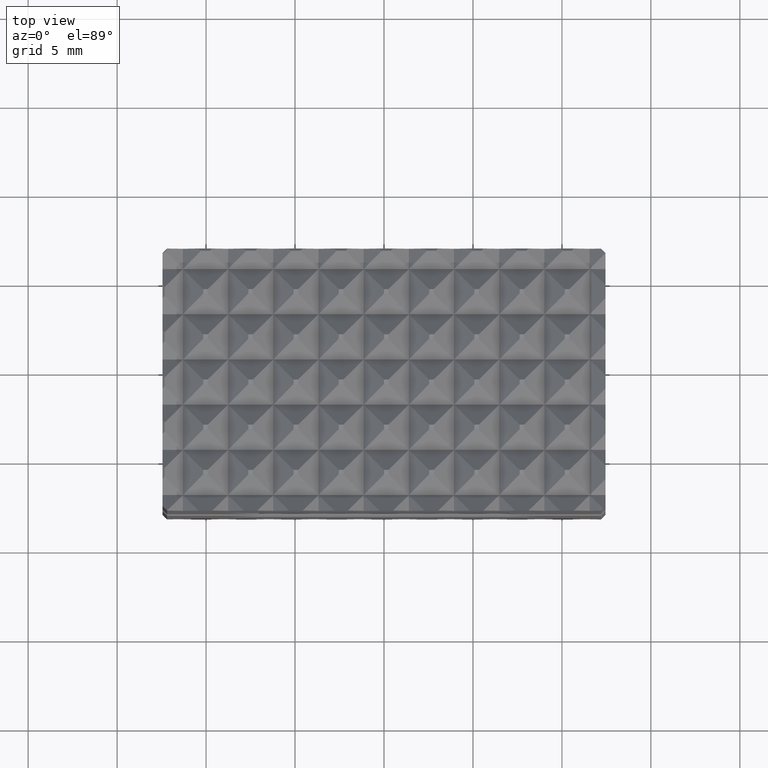
[diagram: clean part render]
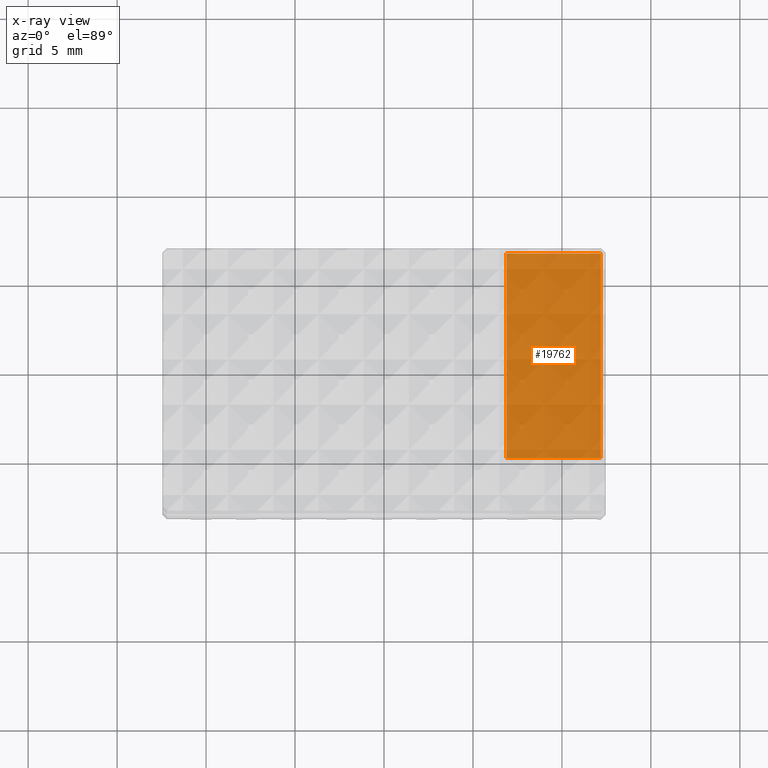
[diagram: x-ray — body ghosted, one internal face saturated and labeled with its STEP entity id]
A machine part, top view, then the same camera in x-ray: the body is ghosted and one INTERNAL B-rep face — a face not visible from any outside direction — is saturated and labeled: STEP entity #19762.
In plain terms, the highlighted planar face has unit normal (0, 0.342, -0.9397).
Its self-contained STEP definition (entity closure, byte-faithful):
#765 = LINE ( 'NONE', #7314, #9479 ) ;
#812 = CARTESIAN_POINT ( 'NONE',  ( 0.4800000000000000933, 0.4499999999999997891, 0.3124912006203184878 ) ) ;
#1612 = EDGE_CURVE ( 'NONE', #10842, #15081, #4268, .T. ) ;
#2078 = VERTEX_POINT ( 'NONE', #812 ) ;
#2567 = DIRECTION ( 'NONE',  ( -1.000000000000000000, 0.0000000000000000000, 0.0000000000000000000 ) ) ;
#3471 = VECTOR ( 'NONE', #8144, 39.37007874015748143 ) ;
#4231 = CARTESIAN_POINT ( 'NONE',  ( 0.4899999999999999911, -0.1882418283656833446, 0.08019017283157517384 ) ) ;
#4268 = LINE ( 'NONE', #5987, #16085 ) ;
#4533 = DIRECTION ( 'NONE',  ( -0.0000000000000000000, 0.9396926207859100932, 0.3420201433256638279 ) ) ;
#5403 = VERTEX_POINT ( 'NONE', #17277 ) ;
#5703 = PLANE ( 'NONE',  #13408 ) ;
#5865 = ORIENTED_EDGE ( 'NONE', *, *, #1612, .F. ) ;
#5987 = CARTESIAN_POINT ( 'NONE',  ( 0.2708974596215555919, -0.1882418283656833446, 0.08019017283157517384 ) ) ;
#6553 = EDGE_CURVE ( 'NONE', #15081, #2078, #15817, .T. ) ;
#7314 = CARTESIAN_POINT ( 'NONE',  ( 0.4899999999999999911, -1.365923996832131609E-16, 0.1487045952005300875 ) ) ;
#7712 = EDGE_CURVE ( 'NONE', #5403, #10842, #765, .T. ) ;
#7725 = DIRECTION ( 'NONE',  ( 0.0000000000000000000, 0.9396926207859100932, 0.3420201433256638279 ) ) ;
#8144 = DIRECTION ( 'NONE',  ( 1.000000000000000000, 0.0000000000000000000, 0.0000000000000000000 ) ) ;
#8655 = EDGE_LOOP ( 'NONE', ( #18360, #10537, #14032, #5865 ) ) ;
#8885 = DIRECTION ( 'NONE',  ( 0.0000000000000000000, 0.3420201433256638834, -0.9396926207859102043 ) ) ;
#9479 = VECTOR ( 'NONE', #2567, 39.37007874015748143 ) ;
#10537 = ORIENTED_EDGE ( 'NONE', *, *, #16010, .T. ) ;
#10842 = VERTEX_POINT ( 'NONE', #14007 ) ;
#12168 = CARTESIAN_POINT ( 'NONE',  ( 0.4800000000000000933, -0.1882418283656833446, 0.08019017283157517384 ) ) ;
#12730 = FACE_OUTER_BOUND ( 'NONE', #8655, .T. ) ;
#13408 = AXIS2_PLACEMENT_3D ( 'NONE', #4231, #8885, #19718 ) ;
#13926 = VECTOR ( 'NONE', #7725, 39.37007874015748854 ) ;
#14007 = CARTESIAN_POINT ( 'NONE',  ( 0.2708974596215555919, -1.365923996832131609E-16, 0.1487045952005300320 ) ) ;
#14032 = ORIENTED_EDGE ( 'NONE', *, *, #6553, .F. ) ;
#15081 = VERTEX_POINT ( 'NONE', #16063 ) ;
#15817 = LINE ( 'NONE', #15849, #3471 ) ;
#15849 = CARTESIAN_POINT ( 'NONE',  ( 0.4899999999999999911, 0.4499999999999997891, 0.3124912006203184878 ) ) ;
#16010 = EDGE_CURVE ( 'NONE', #5403, #2078, #18039, .T. ) ;
#16063 = CARTESIAN_POINT ( 'NONE',  ( 0.2708974596215555919, 0.4499999999999997891, 0.3124912006203184323 ) ) ;
#16085 = VECTOR ( 'NONE', #4533, 39.37007874015748854 ) ;
#17277 = CARTESIAN_POINT ( 'NONE',  ( 0.4800000000000000933, -1.365923996832131609E-16, 0.1487045952005300875 ) ) ;
#18039 = LINE ( 'NONE', #12168, #13926 ) ;
#18360 = ORIENTED_EDGE ( 'NONE', *, *, #7712, .F. ) ;
#19718 = DIRECTION ( 'NONE',  ( 0.0000000000000000000, 0.9396926207859100932, 0.3420201433256638279 ) ) ;
#19762 = ADVANCED_FACE ( 'NONE', ( #12730 ), #5703, .F. ) ;